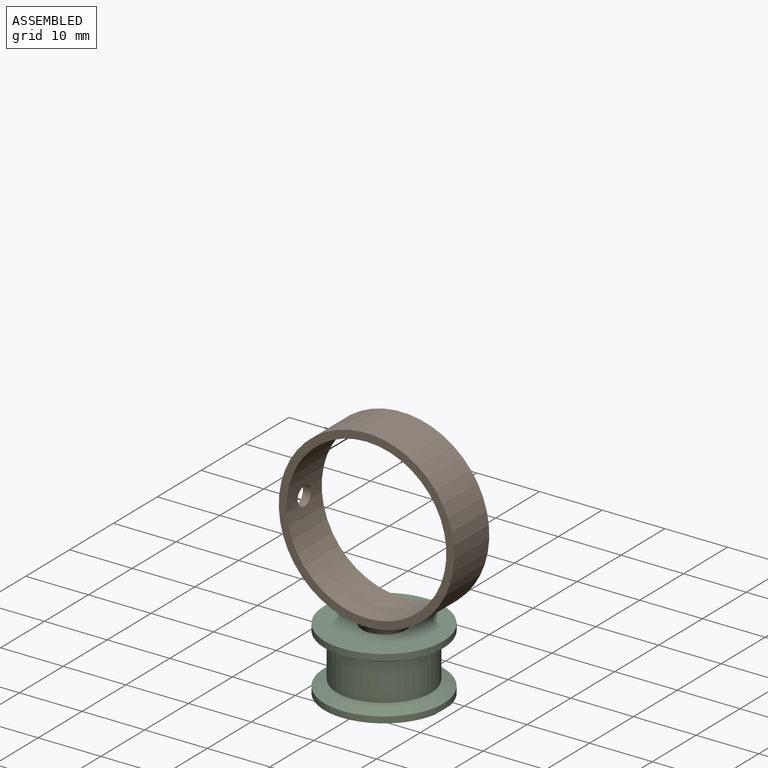
[diagram: assembled view]
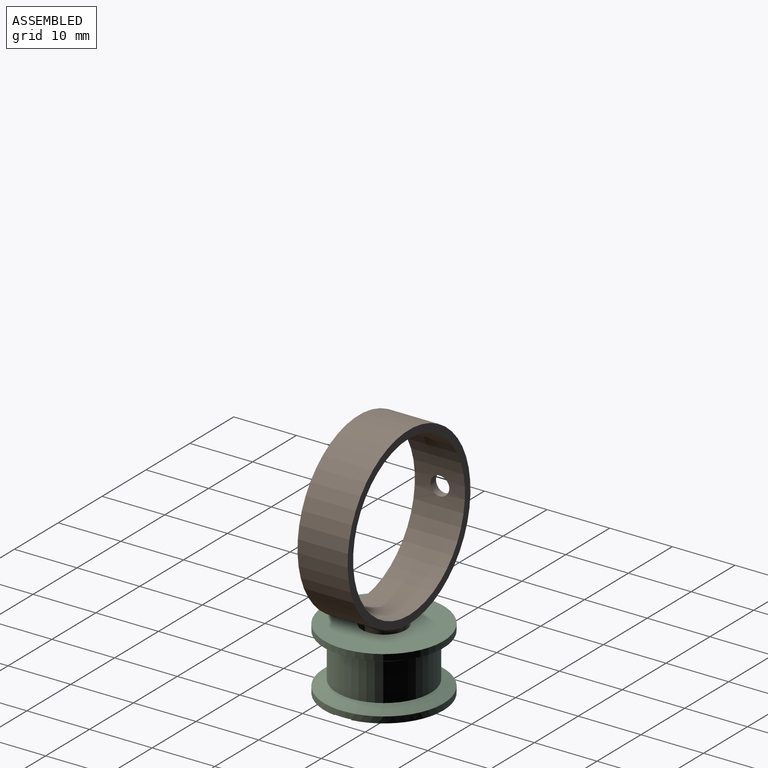
[diagram: assembled view, second angle]
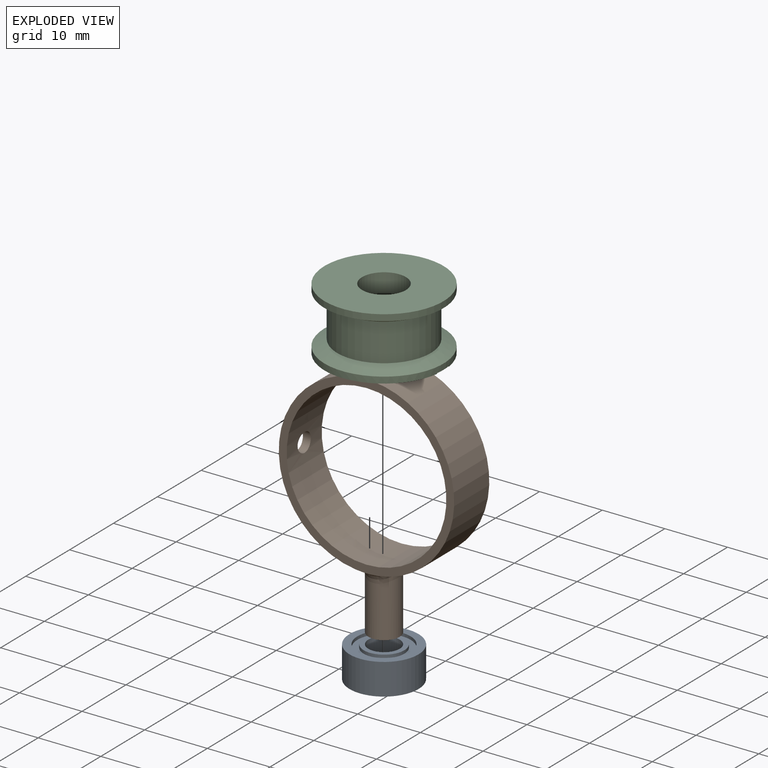
[diagram: exploded view]
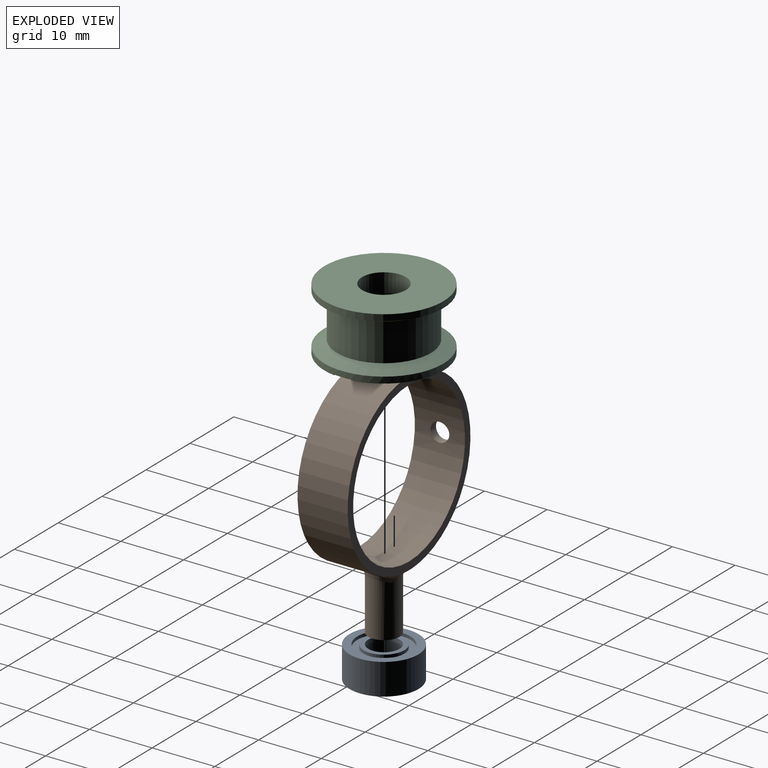
[diagram: exploded view, second angle]
ASSEMBLY  parts=3 mates=2
PART A: 12 faces, bbox 11x11x5 mm
  f0: cylinder r=4.25mm len=8.5mm, axis (0,0,-1), area 13.4mm2, adj f4,f11
  f1: cylinder r=4.25mm len=8.5mm, axis (0,0,-1), area 13.4mm2, adj f3,f10
  f2: cylinder r=5.5mm len=11mm, axis (0,0,-1), area 172.8mm2, adj f3,f4
  f3: plane 11x11mm, normal (0,0,1), area 38.3mm2, adj f1,f2
  f4: plane 11x11mm, normal (0,0,-1), area 38.3mm2, adj f0,f2
  f5: cylinder r=3.25mm len=6.5mm, axis (0,0,-1), area 10.2mm2, adj f9,f11
  f6: cylinder r=2.5mm len=5mm, axis (0,0,-1), area 78.5mm2, adj f8,f9
  f7: cylinder r=3.25mm len=6.5mm, axis (0,0,-1), area 10.2mm2, adj f8,f10
  f8: plane 6.5x6.5mm, normal (0,0,1), area 13.5mm2, adj f6,f7
  f9: plane 6.5x6.5mm, normal (0,0,-1), area 13.5mm2, adj f5,f6
  f10: plane 8.5x8.5mm, normal (0,0,1), area 23.6mm2, adj f1,f7
  f11: plane 8.5x8.5mm, normal (0,0,-1), area 23.6mm2, adj f0,f5
PART B: 11 faces, bbox 28.1x8.7x38.1 mm
  f0: cylinder r=12.75mm len=25.5mm, axis (0,1,0), area 633.8mm2, adj f2,f3,f10
  f1: cylinder r=14mm len=28mm, axis (0,1,0), area 642.8mm2, adj f2,f3,f7,f8,f10
  f2: plane 28.06x28.06mm, normal (0,-1,0), area 105mm2, adj f0,f1,f6
  f3: plane 28.06x28.06mm, normal (0,1,0), area 105mm2, adj f0,f1,f9
  f4: cylinder r=2.5mm len=8.65mm, axis (0,0,1), area 130.8mm2, adj f5,f6,f7,f8,f9
  f5: plane 5x5mm, normal (0,0,-1), area 19.6mm2, adj f4
  f6: bspline ~4.42x2.18mm, area 7.4mm2, adj f2,f4,f7,f8
  f7: bspline ~8x2.81mm, area 19.4mm2, adj f1,f4,f6,f9
  f8: bspline ~8.65x3.41mm, area 19.4mm2, adj f1,f4,f6,f9
  f9: bspline ~4.42x2.18mm, area 7.4mm2, adj f3,f4,f7,f8
  f10: cylinder r=1.5mm len=3mm, axis (1,0,0), area 11.9mm2, adj f0,f1
PART C: 17 faces, bbox 19x19x10 mm
  f0: plane 18.8x8.14mm, normal (0,0,1), area 83.3mm2, adj f6,f9,f11,f14
  f1: plane 18.8x8.14mm, normal (0,0,1), area 83.3mm2, adj f6,f9,f12,f15
  f2: cylinder r=3.5mm len=7mm, axis (0,0,1), area 66mm2, adj f5,f10
  f3: cylinder r=7.5mm len=15mm, axis (0,0,1), area 282.7mm2, adj f7,f8
  f4: cylinder r=9.5mm len=19mm, axis (0,0,1), area 59.7mm2, adj f5,f7
  f5: plane 19x19mm, normal (0,0,-1), area 245mm2, adj f2,f4
  f6: cylinder r=9.5mm len=19mm, axis (0,0,1), area 59.1mm2, adj f0,f1,f8,f11,f12,f13,f14,f15
  f7: cone r=7.5mm half-angle=63.4deg, axis (0,0,-1), area 119.4mm2, adj f3,f4
  f8: cone r=9.5mm half-angle=63.4deg, axis (0,0,1), area 119.4mm2, adj f3,f6
  f9: cylinder r=5.5mm len=11mm, axis (0,0,1), area 241.4mm2, adj f0,f1,f10,f11,f12,f13,f14,f15
  f10: plane 11x11mm, normal (0,0,1), area 56.5mm2, adj f2,f9
  f11: plane 4.07x0.1mm, normal (0,-1,0), area 0.4mm2, adj f0,f6,f9,f13
  f12: plane 4.07x0.1mm, normal (0,1,0), area 0.4mm2, adj f1,f6,f9,f13
  f13: plane 4.17x2.72mm, normal (0,0,1), area 10.9mm2, adj f6,f9,f11,f12
  f14: plane 4.07x0.1mm, normal (0,-1,0), area 0.4mm2, adj f0,f6,f9,f16
  f15: plane 4.07x0.1mm, normal (0,1,0), area 0.4mm2, adj f1,f6,f9,f16
  f16: plane 4.17x2.72mm, normal (0,0,1), area 10.9mm2, adj f6,f9,f14,f15
PLACE A t=(0,-4,-20.5)mm
PLACE B at identity
PLACE C rot(axis=(0,1,0),180deg) t=(0,-4,-20)mm
MATE revolute B.f4 <-> A.f6  axis (0,0,-1) through (0,-4,-24)mm
MATE revolute A.f2 <-> C.f9  axis (0,0,1) through (0,-4,-18)mm
